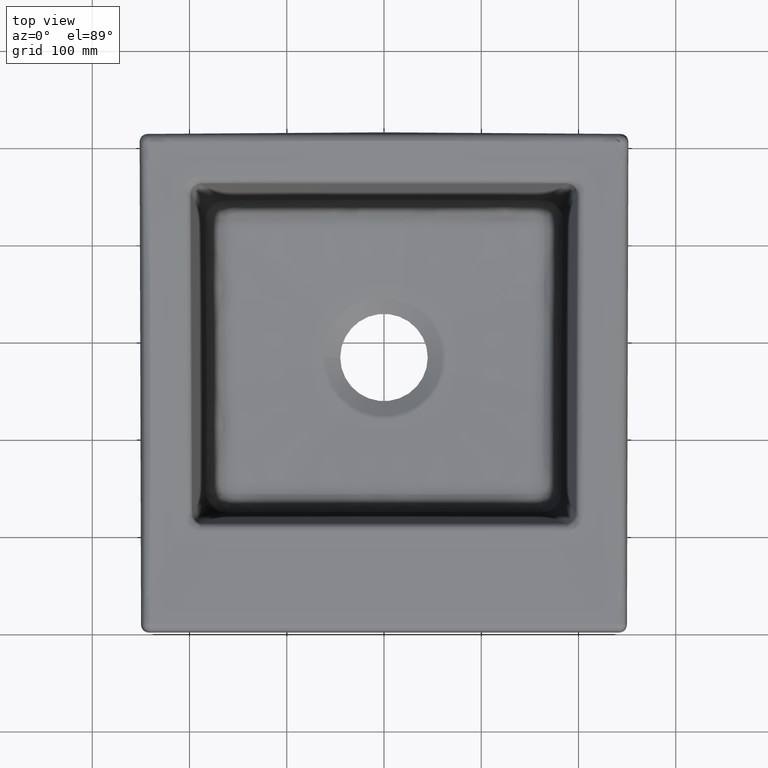
[diagram: clean part render]
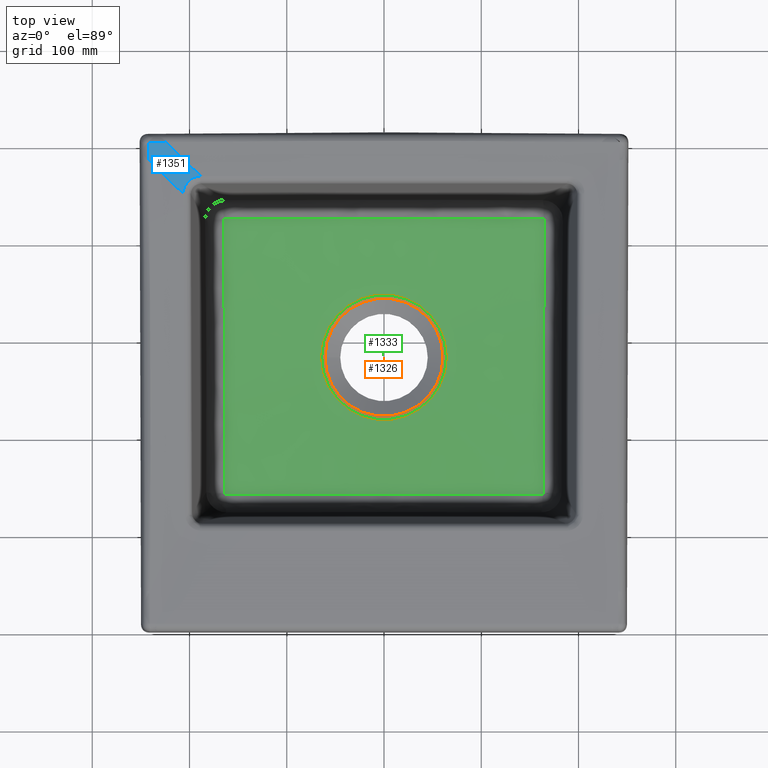
[diagram: same view with three faces highlighted in distinct colors, each labeled with its STEP entity id]
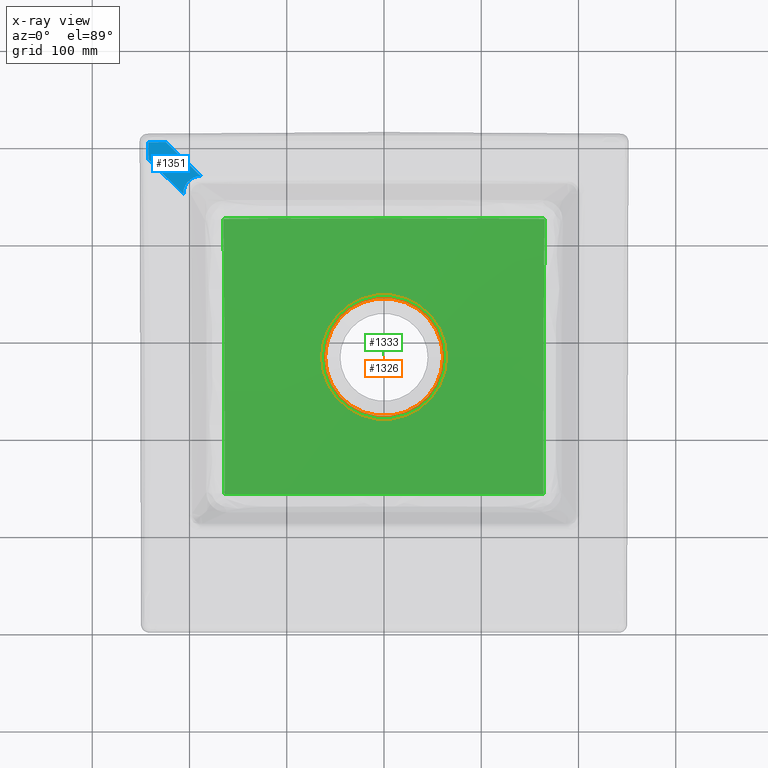
[diagram: x-ray of the same camera — body ghosted, the three highlighted faces saturated]
A machine part, top view with three faces highlighted in distinct colors.
The next image is the same camera in x-ray (body ghosted, the three faces saturated) — at least one of them is partly hidden behind the body in this view.
Their STEP definitions:

[orange] entity #1326 — the highlighted toroidal blend (fillet) surface has major radius 64.721 mm and minor (blend) radius 8 mm.
#1322=TOROIDAL_SURFACE('',#4804,64.7210063281648,8.);
#1326=ADVANCED_FACE('',(#1653,#1654),#1322,.T.);
#1653=FACE_BOUND('',#1671,.T.);
#1654=FACE_BOUND('',#1672,.T.);
#1671=EDGE_LOOP('',(#1985));
#1672=EDGE_LOOP('',(#1986));
#1985=ORIENTED_EDGE('',*,*,#3903,.F.);
#1986=ORIENTED_EDGE('',*,*,#3901,.T.);
#3459=VERTEX_POINT('',#5868);
#3461=VERTEX_POINT('',#5873);
#3901=EDGE_CURVE('',#3459,#3459,#4639,.T.);
#3903=EDGE_CURVE('',#3461,#3461,#4641,.T.);
#4639=CIRCLE('',#4800,60.7210063281648);
#4641=CIRCLE('',#4803,64.1629545382118);
#4800=AXIS2_PLACEMENT_3D('',#5867,#5115,#5116);
#4803=AXIS2_PLACEMENT_3D('',#5872,#5121,#5122);
#4804=AXIS2_PLACEMENT_3D('',#5874,#5123,#5124);
#5115=DIRECTION('',(0.,0.,-1.));
#5116=DIRECTION('',(-1.,0.,0.));
#5121=DIRECTION('',(0.,0.,-1.));
#5122=DIRECTION('',(-1.,0.,0.));
#5123=DIRECTION('',(0.,0.,-1.));
#5124=DIRECTION('',(1.,0.,0.));
#5867=CARTESIAN_POINT('',(7.10542735760099E-15,285.,-200.923472764502));
#5868=CARTESIAN_POINT('',(-60.7210063281648,285.,-200.923472764502));
#5872=CARTESIAN_POINT('',(7.10542735760099E-15,285.,-199.871163592699));
#5873=CARTESIAN_POINT('',(-64.1629545382118,285.,-199.871163592699));
#5874=CARTESIAN_POINT('',(7.10542735760099E-15,285.,-207.851675994778));

[blue] entity #1351 — the highlighted face is a freeform B-spline surface patch.
#452=(
BOUNDED_SURFACE()
B_SPLINE_SURFACE(3,2,((#7265,#7266,#7267),(#7268,#7269,#7270),(#7271,#7272,
#7273),(#7274,#7275,#7276)),.UNSPECIFIED.,.F.,.F.,.F.)
B_SPLINE_SURFACE_WITH_KNOTS((4,4),(3,3),(0.,1.),(0.,1.),.UNSPECIFIED.)
GEOMETRIC_REPRESENTATION_ITEM()
RATIONAL_B_SPLINE_SURFACE(((1.,0.999899948305357,1.),(1.,0.999899948305357,
1.),(1.,0.999899903149843,1.),(1.,0.999899903149843,1.)))
REPRESENTATION_ITEM('')
SURFACE()
);
#618=FACE_OUTER_BOUND('',#1698,.T.);
#912=B_SPLINE_CURVE_WITH_KNOTS('',3,(#6853,#6854,#6855,#6856,#6857,#6858,
#6859,#6860),.UNSPECIFIED.,.F.,.F.,(4,2,2,4),(0.,0.499999999999999,0.749999999999999,
1.),.UNSPECIFIED.);
#927=B_SPLINE_CURVE_WITH_KNOTS('',3,(#7246,#7247,#7248,#7249),
 .UNSPECIFIED.,.F.,.F.,(4,4),(0.,1.),.UNSPECIFIED.);
#928=B_SPLINE_CURVE_WITH_KNOTS('',3,(#7251,#7252,#7253,#7254),
 .UNSPECIFIED.,.F.,.F.,(4,4),(0.,1.),.UNSPECIFIED.);
#929=B_SPLINE_CURVE_WITH_KNOTS('',3,(#7256,#7257,#7258,#7259),
 .UNSPECIFIED.,.F.,.F.,(4,4),(0.,1.),.UNSPECIFIED.);
#930=B_SPLINE_CURVE_WITH_KNOTS('',3,(#7261,#7262,#7263,#7264),
 .UNSPECIFIED.,.F.,.F.,(4,4),(0.,1.),.UNSPECIFIED.);
#1351=ADVANCED_FACE('',(#618),#452,.T.);
#1698=EDGE_LOOP('',(#2094,#2095,#2096,#2097,#2098));
#2094=ORIENTED_EDGE('',*,*,#3966,.F.);
#2095=ORIENTED_EDGE('',*,*,#3938,.T.);
#2096=ORIENTED_EDGE('',*,*,#3967,.F.);
#2097=ORIENTED_EDGE('',*,*,#3968,.F.);
#2098=ORIENTED_EDGE('',*,*,#3969,.F.);
#3484=VERTEX_POINT('',#6850);
#3485=VERTEX_POINT('',#6852);
#3501=VERTEX_POINT('',#7250);
#3502=VERTEX_POINT('',#7255);
#3503=VERTEX_POINT('',#7260);
#3938=EDGE_CURVE('',#3484,#3485,#912,.T.);
#3966=EDGE_CURVE('',#3484,#3501,#927,.T.);
#3967=EDGE_CURVE('',#3502,#3485,#928,.T.);
#3968=EDGE_CURVE('',#3503,#3502,#929,.T.);
#3969=EDGE_CURVE('',#3501,#3503,#930,.T.);
#6850=CARTESIAN_POINT('',(-206.37559943701,449.723682833976,-0.856374562406864));
#6852=CARTESIAN_POINT('',(-188.570957928847,467.933243819953,-0.856374638188124));
#6853=CARTESIAN_POINT('',(-206.375599446439,449.723682824328,-0.856374562216009));
#6854=CARTESIAN_POINT('',(-206.381709427387,454.445820941191,-0.857376310557446));
#6855=CARTESIAN_POINT('',(-204.499039824057,459.142144172791,-0.872414084955179));
#6856=CARTESIAN_POINT('',(-199.573918598482,464.17535295405,-0.872392875414603));
#6857=CARTESIAN_POINT('',(-197.610357029217,465.52250202173,-0.869386689076564));
#6858=CARTESIAN_POINT('',(-193.251497599577,467.390140225719,-0.861464790370214));
#6859=CARTESIAN_POINT('',(-190.964828614878,467.882497269386,-0.856882734438018));
#6860=CARTESIAN_POINT('',(-188.570957928934,467.933243819866,-0.856374638189933));
#7246=CARTESIAN_POINT('',(-206.375599446996,449.723682823759,-0.85637456220468));
#7247=CARTESIAN_POINT('',(-218.267943720148,461.341946886281,-0.621309856758097));
#7248=CARTESIAN_POINT('',(-230.152653476394,472.931779312355,-0.386582058056436));
#7249=CARTESIAN_POINT('',(-242.029637905095,484.493293684686,-0.152191166099698));
#7250=CARTESIAN_POINT('',(-242.029637916222,484.493293672705,-0.152191165864202));
#7251=CARTESIAN_POINT('',(-224.260977706416,502.731651207686,-0.152191166099828));
#7252=CARTESIAN_POINT('',(-212.34130860335,491.130664348659,-0.387187611983673));
#7253=CARTESIAN_POINT('',(-200.444653480933,479.531172537534,-0.621915436013677));
#7254=CARTESIAN_POINT('',(-188.570957928937,467.933243819864,-0.85637463818984));
#7255=CARTESIAN_POINT('',(-224.260977748718,502.731651163269,-0.152191166988289));
#7256=CARTESIAN_POINT('',(-242.355366321867,502.56881956214,-0.0606564751374028));
#7257=CARTESIAN_POINT('',(-236.32412499798,502.628264641719,-0.121179289919703));
#7258=CARTESIAN_POINT('',(-230.292661899303,502.682539665217,-0.151657755885468));
#7259=CARTESIAN_POINT('',(-224.260977706381,502.73165120468,-0.152191166160023));
#7260=CARTESIAN_POINT('',(-242.355366321575,502.568819564361,-0.0606564973886219));
#7261=CARTESIAN_POINT('',(-242.029637903444,484.493293684711,-0.152191166132759));
#7262=CARTESIAN_POINT('',(-242.137802922992,490.518639090716,-0.151657754983045));
#7263=CARTESIAN_POINT('',(-242.246379521425,496.543814421283,-0.121151456535995));
#7264=CARTESIAN_POINT('',(-242.355366320272,502.568819565154,-0.0606564751238604));
#7265=CARTESIAN_POINT('',(-251.501529536443,493.709191069556,0.0346964185470311));
#7266=CARTESIAN_POINT('',(-242.62379480506,502.833963366141,-0.145387650140494));
#7267=CARTESIAN_POINT('',(-233.742411605413,511.955184550082,0.0346964185470311));
#7268=CARTESIAN_POINT('',(-236.353041613535,478.977161042692,-0.264132228667201));
#7269=CARTESIAN_POINT('',(-227.467677696989,488.095831125497,-0.444250687317549));
#7270=CARTESIAN_POINT('',(-218.578667830599,497.210946656742,-0.264132242440636));
#7271=CARTESIAN_POINT('',(-221.221434307405,464.227767269384,-0.562927474515076));
#7272=CARTESIAN_POINT('',(-212.328437357262,473.340330982674,-0.743063948322798));
#7273=CARTESIAN_POINT('',(-203.431796794572,482.449337571823,-0.562927473192938));
#7274=CARTESIAN_POINT('',(-206.106755654799,449.461031441734,-0.861688574496755));
#7275=CARTESIAN_POINT('',(-197.206121571501,458.567485249648,-1.04185393132783));
#7276=CARTESIAN_POINT('',(-188.301846349166,467.670378789911,-0.861688574496755));

[green] entity #1333 — the highlighted conical surface has half-angle 86 deg.
#891=B_SPLINE_CURVE_WITH_KNOTS('',3,(#5880,#5881,#5882,#5883,#5884,#5885,
#5886,#5887,#5888,#5889,#5890,#5891,#5892,#5893,#5894,#5895,#5896,#5897,
#5898,#5899,#5900,#5901,#5902,#5903,#5904,#5905,#5906,#5907,#5908,#5909,
#5910,#5911,#5912,#5913,#5914,#5915,#5916,#5917,#5918,#5919,#5920,#5921,
#5922,#5923,#5924,#5925,#5926,#5927,#5928,#5929,#5930,#5931,#5932,#5933,
#5934,#5935,#5936,#5937,#5938,#5939,#5940,#5941,#5942,#5943,#5944,#5945,
#5946,#5947,#5948,#5949),.UNSPECIFIED.,.F.,.F.,(4,2,2,2,1,2,2,2,2,2,1,2,
2,2,2,2,2,2,2,2,2,2,2,2,2,2,2,1,2,2,2,2,2,1,2,2,4),(0.,0.0624999999999998,
0.0937499999999996,0.109375,0.1171875,0.12109375,0.125,0.187500000000001,
0.218750000000001,0.234375000000002,0.242187500000002,0.246093750000002,
0.250000000000002,0.312500000000002,0.343750000000003,0.359375000000003,
0.367187500000003,0.375000000000003,0.500000000000005,0.562500000000005,
0.593750000000006,0.609375000000006,0.617187500000006,0.625000000000006,
0.687500000000007,0.718750000000007,0.734375000000007,0.742187500000007,
0.746093750000007,0.750000000000007,0.812500000000006,0.843750000000006,
0.859375000000006,0.867187500000006,0.871093750000005,0.875000000000005,
1.),.UNSPECIFIED.);
#894=B_SPLINE_CURVE_WITH_KNOTS('',3,(#6025,#6026,#6027,#6028,#6029,#6030,
#6031,#6032,#6033,#6034,#6035,#6036,#6037,#6038,#6039,#6040,#6041,#6042,
#6043,#6044,#6045,#6046,#6047,#6048,#6049,#6050,#6051,#6052,#6053,#6054,
#6055,#6056,#6057,#6058,#6059,#6060,#6061,#6062,#6063,#6064,#6065,#6066,
#6067,#6068,#6069,#6070,#6071,#6072,#6073,#6074,#6075),.UNSPECIFIED.,.F.,
 .F.,(4,2,2,2,2,2,2,2,2,2,2,2,2,2,2,2,2,2,2,2,2,1,2,2,2,4),(0.,0.125000000000006,
0.187500000000009,0.218750000000011,0.234375000000012,0.242187500000012,
0.250000000000012,0.312500000000011,0.343750000000011,0.35937500000001,
0.37500000000001,0.437500000000009,0.468750000000009,0.500000000000008,
0.531250000000008,0.562500000000007,0.625000000000007,0.656250000000007,
0.687500000000006,0.750000000000006,0.757812500000006,0.765625000000006,
0.781250000000005,0.812500000000004,0.875000000000003,1.),.UNSPECIFIED.);
#897=B_SPLINE_CURVE_WITH_KNOTS('',3,(#6157,#6158,#6159,#6160),
 .UNSPECIFIED.,.F.,.F.,(4,4),(0.,1.),.UNSPECIFIED.);
#899=B_SPLINE_CURVE_WITH_KNOTS('',3,(#6294,#6295,#6296,#6297),
 .UNSPECIFIED.,.F.,.F.,(4,4),(0.,1.),.UNSPECIFIED.);
#904=B_SPLINE_CURVE_WITH_KNOTS('',3,(#6393,#6394,#6395,#6396,#6397,#6398,
#6399,#6400,#6401,#6402,#6403,#6404,#6405,#6406,#6407,#6408,#6409,#6410,
#6411,#6412,#6413,#6414,#6415,#6416,#6417,#6418,#6419,#6420,#6421,#6422,
#6423,#6424,#6425,#6426,#6427,#6428,#6429,#6430,#6431,#6432,#6433,#6434),
 .UNSPECIFIED.,.F.,.F.,(4,2,2,2,2,2,2,2,2,2,2,2,2,2,2,2,2,2,2,2,4),(0.,
0.124999999999997,0.187499999999996,0.218749999999996,0.234374999999995,
0.242187499999995,0.249999999999995,0.312499999999995,0.343749999999995,
0.374999999999995,0.499999999999994,0.562499999999994,0.593749999999993,
0.609374999999993,0.624999999999993,0.687499999999994,0.718749999999995,
0.734374999999995,0.742187499999996,0.749999999999996,1.),.UNSPECIFIED.);
#905=B_SPLINE_CURVE_WITH_KNOTS('',3,(#6492,#6493,#6494,#6495,#6496,#6497,
#6498,#6499,#6500,#6501),.UNSPECIFIED.,.F.,.F.,(4,2,2,2,4),(0.,0.25,0.5,
0.75,1.),.UNSPECIFIED.);
#1252=(
BOUNDED_CURVE()
B_SPLINE_CURVE(3,(#6459,#6460,#6461,#6462,#6463,#6464,#6465,#6466,#6467,
#6468,#6469,#6470,#6471,#6472,#6473,#6474,#6475,#6476,#6477,#6478,#6479,
#6480,#6481,#6482,#6483,#6484,#6485,#6486,#6487,#6488,#6489,#6490),
 .UNSPECIFIED.,.F.,.F.)
B_SPLINE_CURVE_WITH_KNOTS((4,2,2,2,2,2,2,2,2,2,2,2,2,2,2,4),(0.,0.000762985508831484,
0.00867829173497844,0.0245089041872724,0.0561701290918603,0.119492578901036,
0.246137478519387,0.49942727775609,0.626072177374442,0.752717076992793,
0.879361976611145,0.94268442642032,0.974345651324908,0.990176263777202,
0.998091570003349,1.),.UNSPECIFIED.)
CURVE()
GEOMETRIC_REPRESENTATION_ITEM()
RATIONAL_B_SPLINE_CURVE((0.999999998307381,0.999999998307602,0.999999998307831,
0.999999998310053,0.99999999831206,0.999999998318024,0.999999998321923,
0.999999998333398,0.999999998340751,0.999999998361969,0.999999998374995,
0.99999999841102,0.999999998430721,0.999999998477638,0.999999998493672,
0.999999998495827,0.999999998492871,0.999999998479501,0.999999998469191,
0.999999998440457,0.999999998421951,0.999999998388211,0.999999998375922,
0.999999998355755,0.999999998348742,0.99999999833776,0.999999998334021,
0.999999998328294,0.999999998326365,0.999999998323945,0.999999998323272,
0.999999998323027))
REPRESENTATION_ITEM('')
);
#1253=(
BOUNDED_CURVE()
B_SPLINE_CURVE(3,(#6503,#6504,#6505,#6506,#6507,#6508,#6509,#6510,#6511,
#6512,#6513,#6514,#6515,#6516,#6517,#6518,#6519,#6520,#6521,#6522),
 .UNSPECIFIED.,.F.,.F.)
B_SPLINE_CURVE_WITH_KNOTS((4,2,2,2,2,2,2,2,2,4),(0.,0.00747524340660255,
0.0232296046223708,0.0547383270539072,0.11775577191698,0.243790661643126,
0.495860441095417,0.621895330821563,0.747930220547709,1.),.UNSPECIFIED.)
CURVE()
GEOMETRIC_REPRESENTATION_ITEM()
RATIONAL_B_SPLINE_CURVE((1.,1.,1.,1.,1.,1.,1.,1.,1.,1.,1.,1.,1.,1.,1.,1.,
1.,1.,1.,1.))
REPRESENTATION_ITEM('')
);
#1333=ADVANCED_FACE('',(#1655,#1656),#1632,.F.);
#1632=CONICAL_SURFACE('',#4807,62.3205080756887,86.);
#1655=FACE_BOUND('',#1679,.T.);
#1656=FACE_BOUND('',#1680,.T.);
#1679=EDGE_LOOP('',(#2011));
#1680=EDGE_LOOP('',(#2012,#2013,#2014,#2015,#2016,#2017,#2018,#2019));
#2011=ORIENTED_EDGE('',*,*,#3903,.T.);
#2012=ORIENTED_EDGE('',*,*,#3905,.T.);
#2013=ORIENTED_EDGE('',*,*,#3912,.T.);
#2014=ORIENTED_EDGE('',*,*,#3909,.T.);
#2015=ORIENTED_EDGE('',*,*,#3923,.F.);
#2016=ORIENTED_EDGE('',*,*,#3924,.F.);
#2017=ORIENTED_EDGE('',*,*,#3925,.F.);
#2018=ORIENTED_EDGE('',*,*,#3922,.T.);
#2019=ORIENTED_EDGE('',*,*,#3917,.T.);
#3461=VERTEX_POINT('',#5873);
#3462=VERTEX_POINT('',#5878);
#3464=VERTEX_POINT('',#5950);
#3466=VERTEX_POINT('',#6023);
#3468=VERTEX_POINT('',#6076);
#3472=VERTEX_POINT('',#6298);
#3475=VERTEX_POINT('',#6369);
#3476=VERTEX_POINT('',#6491);
#3477=VERTEX_POINT('',#6502);
#3903=EDGE_CURVE('',#3461,#3461,#4641,.T.);
#3905=EDGE_CURVE('',#3464,#3462,#891,.T.);
#3909=EDGE_CURVE('',#3468,#3466,#894,.T.);
#3912=EDGE_CURVE('',#3462,#3468,#897,.T.);
#3917=EDGE_CURVE('',#3472,#3464,#899,.T.);
#3922=EDGE_CURVE('',#3475,#3472,#904,.T.);
#3923=EDGE_CURVE('',#3476,#3466,#1252,.T.);
#3924=EDGE_CURVE('',#3477,#3476,#905,.T.);
#3925=EDGE_CURVE('',#3475,#3477,#1253,.T.);
#4641=CIRCLE('',#4803,64.1629545382118);
#4803=AXIS2_PLACEMENT_3D('',#5872,#5121,#5122);
#4807=AXIS2_PLACEMENT_3D('',#6523,#5129,#5130);
#5121=DIRECTION('',(0.,0.,-1.));
#5122=DIRECTION('',(-1.,0.,0.));
#5129=DIRECTION('',(0.,0.,1.));
#5130=DIRECTION('',(-1.,0.,3.86487519207004E-18));
#5872=CARTESIAN_POINT('',(7.10542735760099E-15,285.,-199.871163592699));
#5873=CARTESIAN_POINT('',(-64.1629545382118,285.,-199.871163592699));
#5878=CARTESIAN_POINT('',(-164.306288604657,427.119575697205,-189.166770296408));
#5880=CARTESIAN_POINT('',(164.306848540464,427.119574592518,-189.166732994097));
#5881=CARTESIAN_POINT('',(157.0775374234,427.17574675268,-189.546503262673));
#5882=CARTESIAN_POINT('',(150.046366895712,427.230629639205,-189.904852447391));
#5883=CARTESIAN_POINT('',(139.783382953918,427.305856092676,-190.410244598682));
#5884=CARTESIAN_POINT('',(136.409608306373,427.329863891042,-190.573353378147));
#5885=CARTESIAN_POINT('',(131.417324891509,427.364563341077,-190.809983640899));
#5886=CARTESIAN_POINT('',(129.764620978299,427.375917045386,-190.887521577409));
#5887=CARTESIAN_POINT('',(127.302288708672,427.392714070451,-191.001820255561));
#5888=CARTESIAN_POINT('',(126.075302868273,427.401054683864,-191.058467537984));
#5889=CARTESIAN_POINT('',(124.854513933061,427.409328678823,-191.114361735428));
#5890=CARTESIAN_POINT('',(124.042023162609,427.414832391152,-191.151457181507));
#5891=CARTESIAN_POINT('',(123.679918967742,427.417283910885,-191.167948417138));
#5892=CARTESIAN_POINT('',(116.058171338961,427.468879420305,-191.513952513188));
#5893=CARTESIAN_POINT('',(109.064853346866,427.514748476212,-191.814936590762));
#5894=CARTESIAN_POINT('',(98.8074283638503,427.576567860247,-192.229412452587));
#5895=CARTESIAN_POINT('',(95.4268853051444,427.59610649507,-192.361404364106));
#5896=CARTESIAN_POINT('',(90.4077020663442,427.624014337405,-192.550142167751));
#5897=CARTESIAN_POINT('',(88.7432346316255,427.633085941869,-192.611513091694));
#5898=CARTESIAN_POINT('',(86.2585331878802,427.646382303674,-192.7012569617));
#5899=CARTESIAN_POINT('',(85.019181248064,427.652952742231,-192.745550767725));
#5900=CARTESIAN_POINT('',(83.7841499851428,427.65941284,-192.788977380285));
#5901=CARTESIAN_POINT('',(82.9617355044236,427.663695677578,-192.817735745666));
#5902=CARTESIAN_POINT('',(82.582909543643,427.665660427995,-192.830915149997));
#5903=CARTESIAN_POINT('',(75.0656926352264,427.704463700652,-193.090843391549));
#5904=CARTESIAN_POINT('',(68.1477432942298,427.733510119862,-193.306450003865));
#5905=CARTESIAN_POINT('',(57.9100142601856,427.775266190711,-193.586312323327));
#5906=CARTESIAN_POINT('',(54.5203463451504,427.788767064859,-193.67234182998));
#5907=CARTESIAN_POINT('',(49.4555805005105,427.807864383412,-193.790499190205));
#5908=CARTESIAN_POINT('',(47.7705969464023,427.814022399348,-193.828070493655));
#5909=CARTESIAN_POINT('',(45.2460475543317,427.822720633214,-193.881705723891));
#5910=CARTESIAN_POINT('',(44.4050177107347,427.82552900494,-193.899130513147));
#5911=CARTESIAN_POINT('',(42.723588864832,427.830909953502,-193.933072850013));
#5912=CARTESIAN_POINT('',(41.915603967523,427.833389117924,-193.948970709939));
#5913=CARTESIAN_POINT('',(27.0801664765192,427.876153544384,-194.232592155935));
#5914=CARTESIAN_POINT('',(13.717350333742,427.897116061852,-194.365889083132));
#5915=CARTESIAN_POINT('',(-6.93771695424435,427.896867429625,-194.36537385486));
#5916=CARTESIAN_POINT('',(-13.7156409564157,427.88068201246,-194.331816242152));
#5917=CARTESIAN_POINT('',(-23.9219589396857,427.865535074311,-194.231401018163));
#5918=CARTESIAN_POINT('',(-27.3305589123637,427.861252550449,-194.189582809346));
#5919=CARTESIAN_POINT('',(-32.4768073129318,427.853853200586,-194.114335794888));
#5920=CARTESIAN_POINT('',(-34.1977680486225,427.851183311671,-194.087166839864));
#5921=CARTESIAN_POINT('',(-36.7903379227283,427.846257964306,-194.043283482019));
#5922=CARTESIAN_POINT('',(-37.6563816146332,427.844460431444,-194.028134041853));
#5923=CARTESIAN_POINT('',(-39.3926317169755,427.840424102101,-193.996791853084));
#5924=CARTESIAN_POINT('',(-40.2958369259833,427.838089485354,-193.97996695752));
#5925=CARTESIAN_POINT('',(-47.8514437599679,427.816154322385,-193.835226654798));
#5926=CARTESIAN_POINT('',(-54.5785184145744,427.788873303372,-193.677578734945));
#5927=CARTESIAN_POINT('',(-64.8087573976445,427.747186634866,-193.397622045682));
#5928=CARTESIAN_POINT('',(-68.2418408156207,427.732848685282,-193.297055681014));
#5929=CARTESIAN_POINT('',(-73.4388503054629,427.709899497468,-193.13533493164));
#5930=CARTESIAN_POINT('',(-75.179066192902,427.701998232741,-193.079616148121));
#5931=CARTESIAN_POINT('',(-77.8026570641141,427.689591026185,-192.993320172248));
#5932=CARTESIAN_POINT('',(-79.1177675755596,427.683247914676,-192.949492734164));
#5933=CARTESIAN_POINT('',(-80.4381070400058,427.67665689188,-192.904646120858));
#5934=CARTESIAN_POINT('',(-81.3195227810486,427.672203197116,-192.87452189527));
#5935=CARTESIAN_POINT('',(-81.7928470376993,427.669780671195,-192.858238702922));
#5936=CARTESIAN_POINT('',(-88.7609655417981,427.63369010892,-192.617165811605));
#5937=CARTESIAN_POINT('',(-95.4381064124802,427.596866554608,-192.365637932899));
#5938=CARTESIAN_POINT('',(-105.686799723962,427.535147965476,-191.951392496286));
#5939=CARTESIAN_POINT('',(-109.141665714187,427.513498882679,-191.807151747656));
#5940=CARTESIAN_POINT('',(-114.387099244534,427.479497677086,-191.581552220073));
#5941=CARTESIAN_POINT('',(-116.146088724826,427.467913579693,-191.504812643438));
#5942=CARTESIAN_POINT('',(-118.800895313753,427.450219391169,-191.387393677327));
#5943=CARTESIAN_POINT('',(-120.132378267395,427.441293341093,-191.328106793982));
#5944=CARTESIAN_POINT('',(-121.470076528454,427.43226502378,-191.267953810202));
#5945=CARTESIAN_POINT('',(-122.363266643266,427.426225617326,-191.227659354252));
#5946=CARTESIAN_POINT('',(-122.853942994338,427.422901311668,-191.205446099223));
#5947=CARTESIAN_POINT('',(-136.205931424807,427.332323719878,-190.599239364018));
#5948=CARTESIAN_POINT('',(-149.857403809786,427.231847607871,-189.925791440186));
#5949=CARTESIAN_POINT('',(-164.30685934218,427.119574508592,-189.166732426661));
#5950=CARTESIAN_POINT('',(164.306848491216,427.119552899641,-189.166733989059));
#6023=CARTESIAN_POINT('',(-163.961711178071,144.774610263348,-189.271397038345));
#6025=CARTESIAN_POINT('',(-165.182735101352,426.227921296838,-189.160948620581));
#6026=CARTESIAN_POINT('',(-165.037292407934,413.698533243401,-189.738032467975));
#6027=CARTESIAN_POINT('',(-164.916780658495,401.652726900154,-190.24900828469));
#6028=CARTESIAN_POINT('',(-164.756010286717,384.14240818723,-190.916309963744));
#6029=CARTESIAN_POINT('',(-164.706313970663,378.39765511325,-191.122216849091));
#6030=CARTESIAN_POINT('',(-164.637358521253,369.887248793102,-191.406286665608));
#6031=CARTESIAN_POINT('',(-164.61530106513,367.068155920074,-191.49684485253));
#6032=CARTESIAN_POINT('',(-164.583420069296,362.861449853815,-191.626484505036));
#6033=CARTESIAN_POINT('',(-164.572992203796,361.462864977313,-191.668664784558));
#6034=CARTESIAN_POINT('',(-164.557606112752,359.369838906893,-191.730385796873));
#6035=CARTESIAN_POINT('',(-164.552519874522,358.672971773378,-191.75070123315));
#6036=CARTESIAN_POINT('',(-164.542423063009,357.280746070464,-191.790815636714));
#6037=CARTESIAN_POINT('',(-164.537785983686,356.637504953638,-191.809148542959));
#6038=CARTESIAN_POINT('',(-164.489621313733,349.916512441674,-191.998209687469));
#6039=CARTESIAN_POINT('',(-164.448104456604,344.026676385186,-192.146382689551));
#6040=CARTESIAN_POINT('',(-164.392822542998,335.25542584318,-192.338820169783));
#6041=CARTESIAN_POINT('',(-164.375456723896,332.342145681308,-192.397995659379));
#6042=CARTESIAN_POINT('',(-164.350489314211,327.979082003669,-192.479303388049));
#6043=CARTESIAN_POINT('',(-164.342338019659,326.525863835985,-192.505163379986));
#6044=CARTESIAN_POINT('',(-164.32617528476,323.620152948223,-192.554398195284));
#6045=CARTESIAN_POINT('',(-164.318327665962,322.197057950798,-192.577325205091));
#6046=CARTESIAN_POINT('',(-164.277081166954,314.785438469986,-192.690225468246));
#6047=CARTESIAN_POINT('',(-164.2425237811,308.930939792022,-192.758744369578));
#6048=CARTESIAN_POINT('',(-164.199626759177,300.167701973998,-192.828820757788));
#6049=CARTESIAN_POINT('',(-164.186577685319,297.24962597964,-192.84672922656));
#6050=CARTESIAN_POINT('',(-164.161810271998,291.40313445604,-192.871645509509));
#6051=CARTESIAN_POINT('',(-164.14997096129,288.445912208539,-192.878668570749));
#6052=CARTESIAN_POINT('',(-164.124773574239,282.619734440828,-192.881753050377));
#6053=CARTESIAN_POINT('',(-164.111316403565,279.66042924967,-192.877839070296));
#6054=CARTESIAN_POINT('',(-164.085568527054,273.810054499918,-192.85905926639));
#6055=CARTESIAN_POINT('',(-164.073352214106,270.890808772656,-192.844199665177));
#6056=CARTESIAN_POINT('',(-164.040371219575,262.126097602256,-192.783211763761));
#6057=CARTESIAN_POINT('',(-164.024261338968,256.273344747467,-192.720674365779));
#6058=CARTESIAN_POINT('',(-163.996992868834,247.38470102928,-192.594050073249));
#6059=CARTESIAN_POINT('',(-163.987826555254,244.523890875495,-192.548233095978));
#6060=CARTESIAN_POINT('',(-163.97066864381,238.702711013352,-192.445274133171));
#6061=CARTESIAN_POINT('',(-163.962770086655,235.788317669408,-192.388781303266));
#6062=CARTESIAN_POINT('',(-163.94203558773,227.015435713511,-192.20426276805));
#6063=CARTESIAN_POINT('',(-163.93261111584,221.126783896101,-192.061197017235));
#6064=CARTESIAN_POINT('',(-163.922393714451,214.407931294996,-191.877687979315));
#6065=CARTESIAN_POINT('',(-163.921393817059,213.743156885435,-191.859280284467));
#6066=CARTESIAN_POINT('',(-163.919361184048,212.348228781691,-191.820204071572));
#6067=CARTESIAN_POINT('',(-163.916393519358,210.253749255905,-191.760808010484));
#6068=CARTESIAN_POINT('',(-163.913718403665,208.152497035286,-191.699066724164));
#6069=CARTESIAN_POINT('',(-163.908853719182,203.939659034296,-191.572457184548));
#6070=CARTESIAN_POINT('',(-163.906266026325,201.117301542002,-191.483881535502));
#6071=CARTESIAN_POINT('',(-163.900873310854,192.599156775336,-191.205646720458));
#6072=CARTESIAN_POINT('',(-163.900467349492,186.851976148882,-191.003479686554));
#6073=CARTESIAN_POINT('',(-163.909000663266,169.339558093499,-190.346947113217));
#6074=CARTESIAN_POINT('',(-163.925543847718,157.299118179837,-189.84255010216));
#6075=CARTESIAN_POINT('',(-163.961734161409,144.775585759115,-189.271444462271));
#6076=CARTESIAN_POINT('',(-165.182689077441,426.227670671689,-189.160961427832));
#6157=CARTESIAN_POINT('',(-164.306859342186,427.119574509655,-189.166732426612));
#6158=CARTESIAN_POINT('',(-164.768997654328,427.115983667132,-189.142455369966));
#6159=CARTESIAN_POINT('',(-165.187423904579,426.690558055696,-189.139676524625));
#6160=CARTESIAN_POINT('',(-165.182734206357,426.227921308074,-189.160948667638));
#6294=CARTESIAN_POINT('',(165.182720862344,426.226694706797,-189.161005115278));
#6295=CARTESIAN_POINT('',(165.188023311427,426.683486240942,-189.139966122269));
#6296=CARTESIAN_POINT('',(164.768488869598,427.115987622723,-189.142482098047));
#6297=CARTESIAN_POINT('',(164.30684854047,427.119574593571,-189.166732994049));
#6298=CARTESIAN_POINT('',(165.182684890627,426.226857850391,-189.160997136619));
#6369=CARTESIAN_POINT('',(163.96164237809,144.772433261118,-189.271306060933));
#6393=CARTESIAN_POINT('',(163.961743269335,144.772434110105,-189.271300737938));
#6394=CARTESIAN_POINT('',(163.925561415023,157.292101705105,-189.842237625496));
#6395=CARTESIAN_POINT('',(163.909097638697,169.329202001071,-190.346513694895));
#6396=CARTESIAN_POINT('',(163.9006003133,186.837157915171,-191.002936571757));
#6397=CARTESIAN_POINT('',(163.90100415352,192.582940717622,-191.205078992839));
#6398=CARTESIAN_POINT('',(163.906351904626,201.099076673775,-191.483294817651));
#6399=CARTESIAN_POINT('',(163.90891769703,203.92077909578,-191.571867124787));
#6400=CARTESIAN_POINT('',(163.913737257928,208.132649399129,-191.698476133788));
#6401=CARTESIAN_POINT('',(163.915503587507,209.533164124052,-191.739637561505));
#6402=CARTESIAN_POINT('',(163.918344995203,211.629423652132,-191.799817340155));
#6403=CARTESIAN_POINT('',(163.919323938537,212.327425058771,-191.81961687255));
#6404=CARTESIAN_POINT('',(163.921335150501,213.722036627257,-191.8586951497));
#6405=CARTESIAN_POINT('',(163.922291184793,214.368253943615,-191.876596843561));
#6406=CARTESIAN_POINT('',(163.932453719038,221.085537317405,-192.060155459992));
#6407=CARTESIAN_POINT('',(163.941856574822,226.972842153643,-192.203276726165));
#6408=CARTESIAN_POINT('',(163.962577474766,235.743693559123,-192.387895702773));
#6409=CARTESIAN_POINT('',(163.970474903178,238.657408267509,-192.444424874535));
#6410=CARTESIAN_POINT('',(163.987637214757,244.477212670853,-192.54746224384));
#6411=CARTESIAN_POINT('',(163.996740585188,247.328720881726,-192.59319170548));
#6412=CARTESIAN_POINT('',(164.042482041651,262.145403673179,-192.804573937188));
#6413=CARTESIAN_POINT('',(164.086495209297,273.706755822971,-192.88616106643));
#6414=CARTESIAN_POINT('',(164.162435058718,291.358745942895,-192.877280652936));
#6415=CARTESIAN_POINT('',(164.184994836985,297.189455604622,-192.852503193936));
#6416=CARTESIAN_POINT('',(164.227984011904,305.954546321203,-192.782611023681));
#6417=CARTESIAN_POINT('',(164.243561972359,308.879389957404,-192.753859303304));
#6418=CARTESIAN_POINT('',(164.268088753303,313.283325993216,-192.702550227301));
#6419=CARTESIAN_POINT('',(164.276441821314,314.754079117947,-192.684083619393));
#6420=CARTESIAN_POINT('',(164.293199700772,317.703070803339,-192.644423238431));
#6421=CARTESIAN_POINT('',(164.301768227779,319.210870456912,-192.622779803457));
#6422=CARTESIAN_POINT('',(164.342049133817,326.477706083934,-192.512241334924));
#6423=CARTESIAN_POINT('',(164.374080577771,332.285133951156,-192.403894704388));
#6424=CARTESIAN_POINT('',(164.429468835324,341.060537489301,-192.211500975018));
#6425=CARTESIAN_POINT('',(164.448988982856,343.996288570622,-192.142390767967));
#6426=CARTESIAN_POINT('',(164.479523376496,348.424083521159,-192.0312570115));
#6427=CARTESIAN_POINT('',(164.489902736916,349.904036415202,-191.992967685029));
#6428=CARTESIAN_POINT('',(164.505668253594,352.130965282774,-191.933666583849));
#6429=CARTESIAN_POINT('',(164.510955762312,352.874441049337,-191.913588364877));
#6430=CARTESIAN_POINT('',(164.521573234269,354.363880779629,-191.872809556443));
#6431=CARTESIAN_POINT('',(164.527277113127,355.162185030498,-191.850637288215));
#6432=CARTESIAN_POINT('',(164.691112787118,378.095334534891,-191.205814122084));
#6433=CARTESIAN_POINT('',(164.891682255126,401.15453699348,-190.315783429741));
#6434=CARTESIAN_POINT('',(165.182720862991,426.226694706788,-189.161005115244));
#6459=CARTESIAN_POINT('',(-163.079074537639,143.890185650886,-189.277858850986));
#6460=CARTESIAN_POINT('',(-163.079428738632,143.890185784304,-189.277840127267));
#6461=CARTESIAN_POINT('',(-163.079782915132,143.89018613712,-189.277821414857));
#6462=CARTESIAN_POINT('',(-163.083811011763,143.890193291678,-189.277608739569));
#6463=CARTESIAN_POINT('',(-163.087482232165,143.890224276011,-189.277416023138));
#6464=CARTESIAN_POINT('',(-163.098487759155,143.89039008998,-189.27684162893));
#6465=CARTESIAN_POINT('',(-163.105813932258,143.89059777402,-189.276463705903));
#6466=CARTESIAN_POINT('',(-163.127760310632,143.891508719681,-189.275344770942));
#6467=CARTESIAN_POINT('',(-163.142348397506,143.892499672889,-189.274618582719));
#6468=CARTESIAN_POINT('',(-163.185986395671,143.896603465561,-189.272498265289));
#6469=CARTESIAN_POINT('',(-163.214910394038,143.900844106255,-189.271162221951));
#6470=CARTESIAN_POINT('',(-163.30118294165,143.918039396339,-189.267384284604));
#6471=CARTESIAN_POINT('',(-163.357504054825,143.935428312716,-189.265198705312));
#6472=CARTESIAN_POINT('',(-163.518273522228,144.002890675524,-189.259770553256));
#6473=CARTESIAN_POINT('',(-163.617729901496,144.069968706795,-189.257564871677));
#6474=CARTESIAN_POINT('',(-163.741341047258,144.193704320465,-189.256655851089));
#6475=CARTESIAN_POINT('',(-163.7791111353,144.239592186864,-189.25674489906));
#6476=CARTESIAN_POINT('',(-163.844356588778,144.336822945725,-189.257714242188));
#6477=CARTESIAN_POINT('',(-163.872003302184,144.388122460356,-189.258583520771));
#6478=CARTESIAN_POINT('',(-163.917147335239,144.496196384945,-189.261107022571));
#6479=CARTESIAN_POINT('',(-163.934444446428,144.552910176927,-189.262769075759));
#6480=CARTESIAN_POINT('',(-163.951317534963,144.638480344,-189.26576483085));
#6481=CARTESIAN_POINT('',(-163.955489699441,144.667238708212,-189.266850923681));
#6482=CARTESIAN_POINT('',(-163.959514934426,144.710737568048,-189.268614716617));
#6483=CARTESIAN_POINT('',(-163.960483740147,144.725297531571,-189.269225136453));
#6484=CARTESIAN_POINT('',(-163.961363069843,144.747230332881,-189.270175384886));
#6485=CARTESIAN_POINT('',(-163.96156048141,144.754556751044,-189.27049790728));
#6486=CARTESIAN_POINT('',(-163.96171069465,144.765569986079,-189.270990494061));
#6487=CARTESIAN_POINT('',(-163.961736447083,144.769244999264,-189.271156156932));
#6488=CARTESIAN_POINT('',(-163.961737949008,144.773811009642,-189.271363600127));
#6489=CARTESIAN_POINT('',(-163.961736506859,144.774698316403,-189.271404004218));
#6490=CARTESIAN_POINT('',(-163.961734222189,144.775585759418,-189.271444459055));
#6491=CARTESIAN_POINT('',(-163.079834537898,143.89018647773,-189.277818700703));
#6492=CARTESIAN_POINT('',(163.077476075088,143.890210390475,-189.277965508014));
#6493=CARTESIAN_POINT('',(136.019916072225,143.928912683479,-190.711078469642));
#6494=CARTESIAN_POINT('',(108.927715538217,143.93539898027,-192.004599092353));
#6495=CARTESIAN_POINT('',(54.5920911752663,143.900134553527,-193.906452380935));
#6496=CARTESIAN_POINT('',(27.3361744526244,143.86374090519,-194.488652888748));
#6497=CARTESIAN_POINT('',(-27.2299092167072,143.863966791441,-194.48866682518));
#6498=CARTESIAN_POINT('',(-54.5197204374375,143.900123083546,-193.908978449022));
#6499=CARTESIAN_POINT('',(-108.900136896296,143.935344438304,-192.005605874432));
#6500=CARTESIAN_POINT('',(-136.008571239452,143.929095480605,-190.711102667571));
#6501=CARTESIAN_POINT('',(-163.079074745225,143.89021395792,-189.27786013521));
#6502=CARTESIAN_POINT('',(163.077476998709,143.890194364114,-189.27795535955));
#6503=CARTESIAN_POINT('',(163.96173724487,144.77243410117,-189.271301057685));
#6504=CARTESIAN_POINT('',(163.961734029948,144.76896368117,-189.271143499268));
#6505=CARTESIAN_POINT('',(163.961708980491,144.765495647096,-189.270987206238));
#6506=CARTESIAN_POINT('',(163.961563735549,144.754725963986,-189.270505425534));
#6507=CARTESIAN_POINT('',(163.961368895252,144.747432471647,-189.270184263384));
#6508=CARTESIAN_POINT('',(163.960498843117,144.725583195852,-189.269237319695));
#6509=CARTESIAN_POINT('',(163.959538298472,144.711058591943,-189.268628069398));
#6510=CARTESIAN_POINT('',(163.955534851462,144.667607367035,-189.266865287757));
#6511=CARTESIAN_POINT('',(163.951373217497,144.638802996282,-189.2657765469));
#6512=CARTESIAN_POINT('',(163.934450680833,144.552874816156,-189.262767139284));
#6513=CARTESIAN_POINT('',(163.917302825621,144.496804693399,-189.261126437298));
#6514=CARTESIAN_POINT('',(163.850686644295,144.336637743967,-189.257371364688));
#6515=CARTESIAN_POINT('',(163.784360418275,144.237458965782,-189.256370907534));
#6516=CARTESIAN_POINT('',(163.662005284366,144.113963139797,-189.257224497532));
#6517=CARTESIAN_POINT('',(163.616633606393,144.076179378707,-189.257904704432));
#6518=CARTESIAN_POINT('',(163.520410801754,144.010714575783,-189.260013387664));
#6519=CARTESIAN_POINT('',(163.469645067706,143.982898089868,-189.261431204397));
#6520=CARTESIAN_POINT('',(163.30926379019,143.91442036273,-189.266792667207));
#6521=CARTESIAN_POINT('',(163.193206052007,143.890020228809,-189.271816137817));
#6522=CARTESIAN_POINT('',(163.077474793642,143.890186410022,-189.277943478536));
#6523=CARTESIAN_POINT('',(7.10542735760099E-15,285.,-200.));